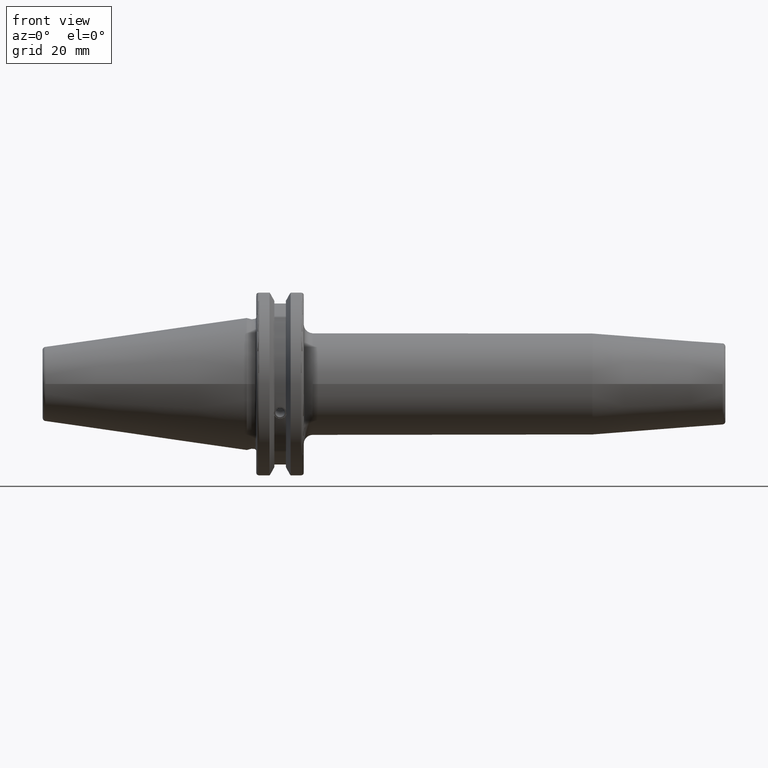
[diagram: clean part render]
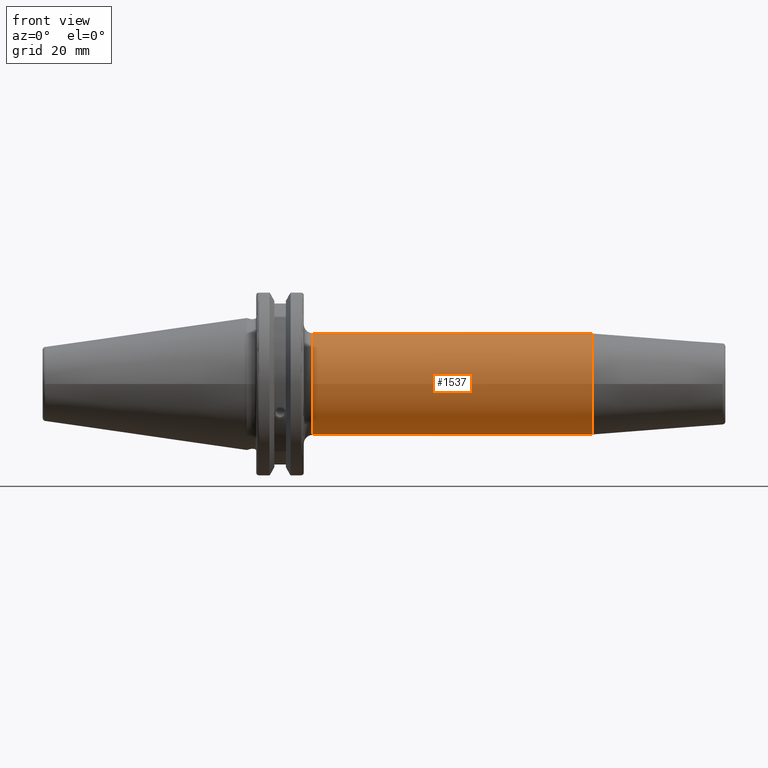
[diagram: same view with one face highlighted and labeled with its STEP entity id]
A machine part, front view. The second image highlights one B-rep face of the part: STEP entity #1537.
In plain terms, the highlighted cylindrical surface (bore or boss wall) has radius 17 mm, axis along (1, 0, 0).
Its self-contained STEP definition (entity closure, byte-faithful):
#148=CYLINDRICAL_SURFACE('',#1668,17.);
#185=FACE_OUTER_BOUND('',#278,.T.);
#278=EDGE_LOOP('',(#1080,#1081,#1082,#1083,#1084));
#379=LINE('',#2349,#475);
#475=VECTOR('',#1892,17.);
#576=CIRCLE('',#1662,17.);
#577=CIRCLE('',#1664,17.);
#580=CIRCLE('',#1667,17.);
#654=VERTEX_POINT('',#2337);
#655=VERTEX_POINT('',#2341);
#656=VERTEX_POINT('',#2342);
#818=EDGE_CURVE('',#654,#654,#576,.T.);
#819=EDGE_CURVE('',#655,#656,#577,.T.);
#822=EDGE_CURVE('',#656,#655,#580,.T.);
#823=EDGE_CURVE('',#654,#655,#379,.T.);
#1080=ORIENTED_EDGE('',*,*,#818,.F.);
#1081=ORIENTED_EDGE('',*,*,#823,.T.);
#1082=ORIENTED_EDGE('',*,*,#822,.F.);
#1083=ORIENTED_EDGE('',*,*,#819,.F.);
#1084=ORIENTED_EDGE('',*,*,#823,.F.);
#1537=ADVANCED_FACE('',(#185),#148,.T.);
#1662=AXIS2_PLACEMENT_3D('',#2339,#1878,#1879);
#1664=AXIS2_PLACEMENT_3D('',#2343,#1882,#1883);
#1667=AXIS2_PLACEMENT_3D('',#2347,#1888,#1889);
#1668=AXIS2_PLACEMENT_3D('',#2348,#1890,#1891);
#1878=DIRECTION('center_axis',(1.,0.,0.));
#1879=DIRECTION('ref_axis',(0.,0.,-1.));
#1882=DIRECTION('center_axis',(-1.,0.,0.));
#1883=DIRECTION('ref_axis',(0.,-1.,-1.22464679914735E-16));
#1888=DIRECTION('center_axis',(-1.,0.,0.));
#1889=DIRECTION('ref_axis',(0.,-1.,-1.22464679914735E-16));
#1890=DIRECTION('center_axis',(1.,0.,0.));
#1891=DIRECTION('ref_axis',(0.,1.,0.));
#1892=DIRECTION('',(-1.,0.,0.));
#2337=CARTESIAN_POINT('',(115.528283423389,-17.,-2.0818995585505E-15));
#2339=CARTESIAN_POINT('Origin',(115.528283423389,0.,0.));
#2341=CARTESIAN_POINT('',(22.05,-17.,-2.0818995585505E-15));
#2342=CARTESIAN_POINT('',(22.05,-2.0818995585505E-15,-17.));
#2343=CARTESIAN_POINT('Origin',(22.05,0.,0.));
#2347=CARTESIAN_POINT('Origin',(22.05,0.,0.));
#2348=CARTESIAN_POINT('Origin',(67.2891417116944,0.,0.));
#2349=CARTESIAN_POINT('',(67.2891417116944,-17.,-2.0818995585505E-15));